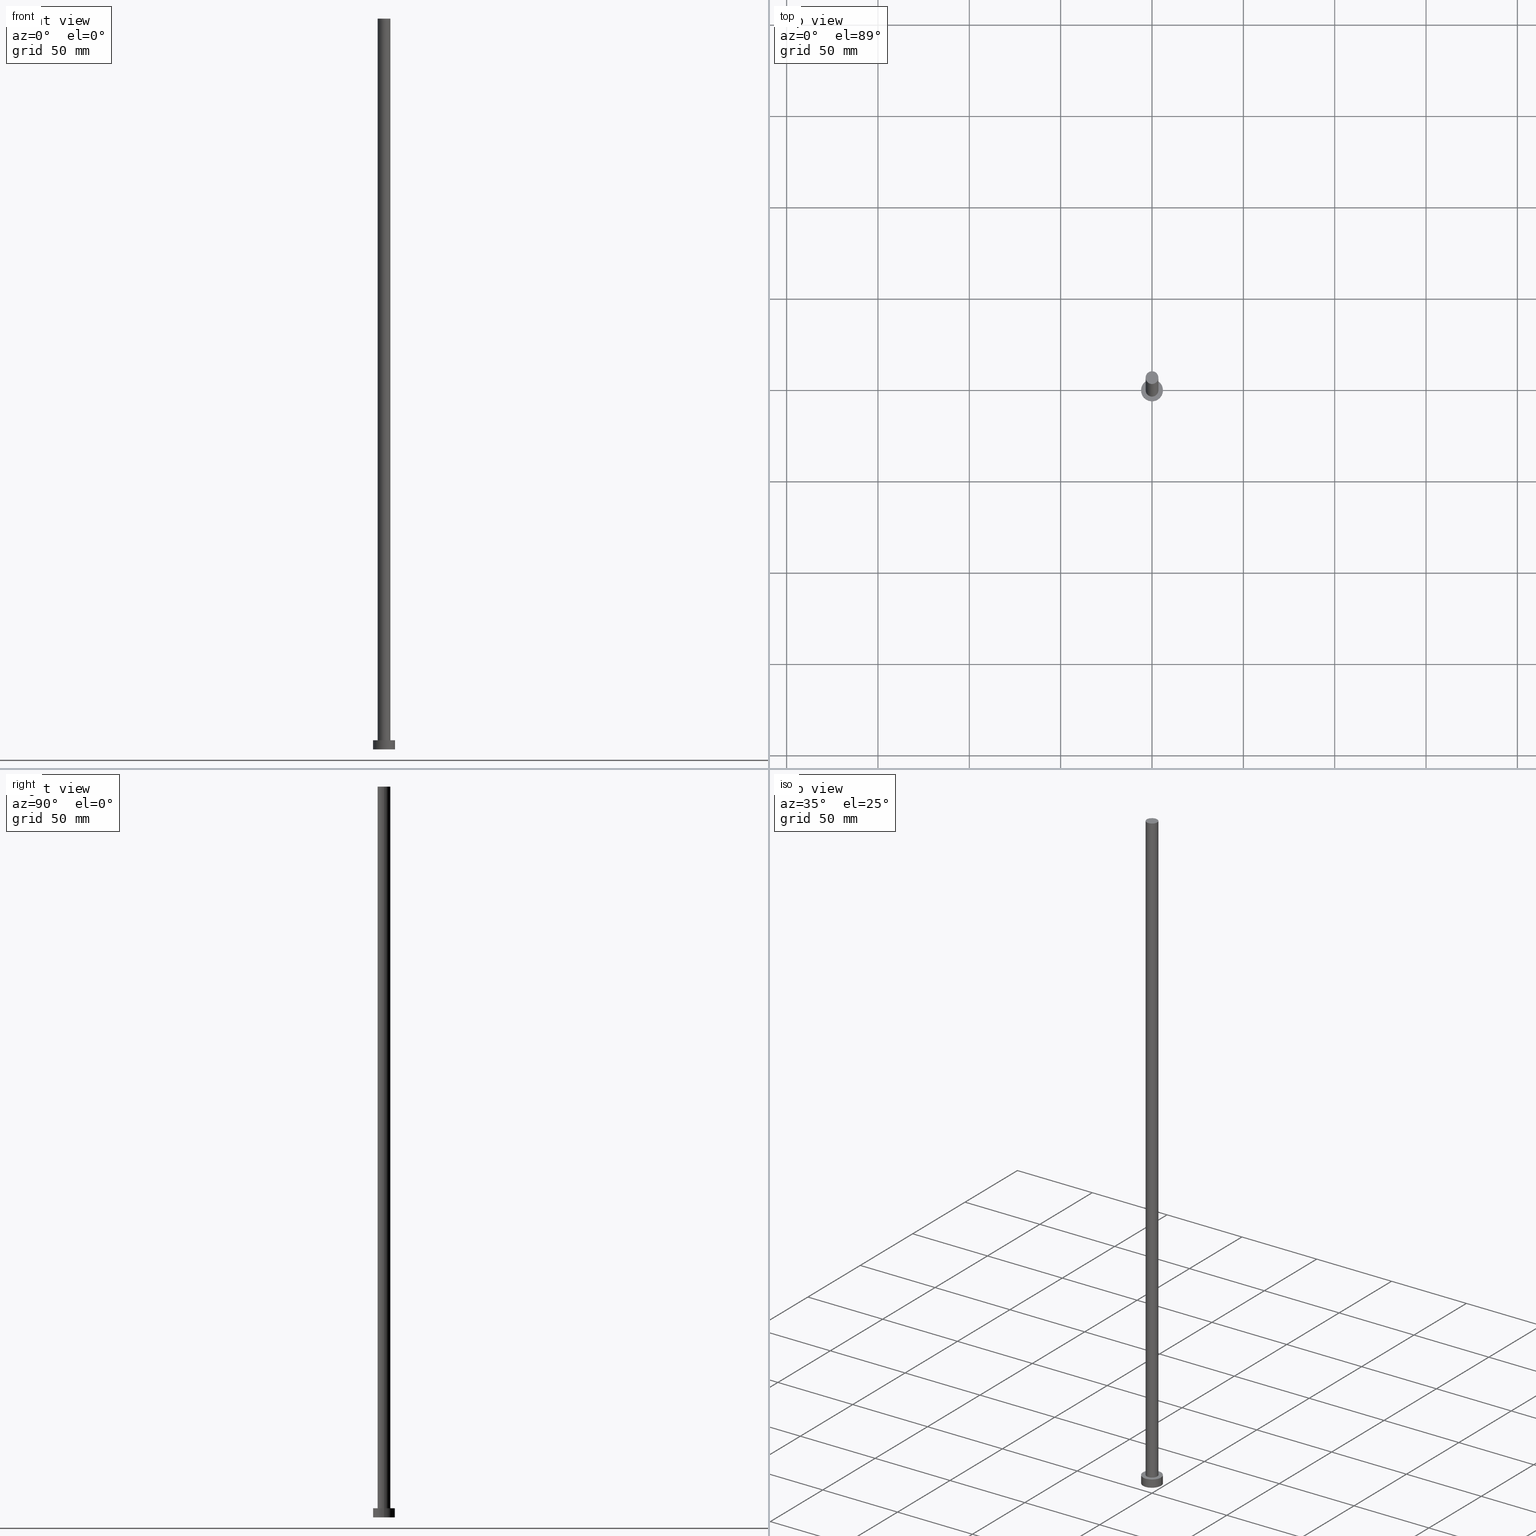
[diagram: canonical four-view strip — front | top / right | iso, engineering-drawing reading convention]
A machine part, canonical four-view strip (front | top / right | iso — engineering-drawing reading convention). The complete STEP part file that produces these views, byte-faithful:
ISO-10303-21;
HEADER;
FILE_DESCRIPTION (( 'STEP AP203' ),
    '1' );
FILE_NAME ('2bd3.STEP',
    '2023-02-13T11:45:54',
    ( '' ),
    ( '' ),
    'SwSTEP 2.0',
    'SolidWorks 2019',
    '' );
FILE_SCHEMA (( 'CONFIG_CONTROL_DESIGN' ));
ENDSEC;

DATA;
#1 = CARTESIAN_POINT ( 'NONE',  ( 0.000000000000000000, 0.000000000000000000, 5.000000000000000000 ) ) ;
#2 = AXIS2_PLACEMENT_3D ( 'NONE', #1, #196, #99 ) ;
#3 = FACE_OUTER_BOUND ( 'NONE', #211, .T. ) ;
#4 = CARTESIAN_POINT ( 'NONE',  ( 0.000000000000000000, 0.000000000000000000, 0.000000000000000000 ) ) ;
#5 = DIRECTION ( 'NONE',  ( -1.000000000000000000, 0.000000000000000000, 0.000000000000000000 ) ) ;
#6 = FACE_OUTER_BOUND ( 'NONE', #249, .T. ) ;
#7 = FACE_OUTER_BOUND ( 'NONE', #215, .T. ) ;
#8 = DIRECTION ( 'NONE',  ( 1.000000000000000000, 0.000000000000000000, 0.000000000000000000 ) ) ;
#9 = AXIS2_PLACEMENT_3D ( 'NONE', #140, #64, #219 ) ;
#10 = EDGE_CURVE ( 'NONE', #234, #173, #197, .T. ) ;
#11 = LOCAL_TIME ( 12, 45, 54.00000000000000000, #53 ) ;
#12 = APPROVAL_ROLE ( '' ) ;
#13 = EDGE_LOOP ( 'NONE', ( #133, #183 ) ) ;
#14 = PRODUCT_DEFINITION_SHAPE ( 'NONE', 'NONE',  #43 ) ;
#15 = ORIENTED_EDGE ( 'NONE', *, *, #37, .F. ) ;
#16 = CALENDAR_DATE ( 2023, 13, 2 ) ;
#17 = CC_DESIGN_PERSON_AND_ORGANIZATION_ASSIGNMENT ( #189, #95, ( #119 ) ) ;
#18 =( NAMED_UNIT ( * ) SI_UNIT ( $, .STERADIAN. ) SOLID_ANGLE_UNIT ( ) );
#19 = AXIS2_PLACEMENT_3D ( 'NONE', #42, #135, #84 ) ;
#20 = CARTESIAN_POINT ( 'NONE',  ( -6.000000000000000888, 0.000000000000000000, 0.000000000000000000 ) ) ;
#21 = APPLICATION_PROTOCOL_DEFINITION ( 'international standard', 'config_control_design', 1994, #147 ) ;
#22 = ORIENTED_EDGE ( 'NONE', *, *, #10, .T. ) ;
#23 = ORIENTED_EDGE ( 'NONE', *, *, #248, .T. ) ;
#24 = PLANE ( 'NONE',  #68 ) ;
#25 = EDGE_CURVE ( 'NONE', #39, #44, #101, .T. ) ;
#26 = FACE_OUTER_BOUND ( 'NONE', #255, .T. ) ;
#27 = CARTESIAN_POINT ( 'NONE',  ( -6.000000000000000888, 0.000000000000000000, 5.000000000000000000 ) ) ;
#28 = AXIS2_PLACEMENT_3D ( 'NONE', #38, #70, #225 ) ;
#29 = DIRECTION ( 'NONE',  ( -1.000000000000000000, 0.000000000000000000, 0.000000000000000000 ) ) ;
#30 = CARTESIAN_POINT ( 'NONE',  ( 0.000000000000000000, 0.000000000000000000, 5.000000000000000000 ) ) ;
#31 = ADVANCED_FACE ( 'NONE', ( #3 ), #214, .T. ) ;
#32 = CIRCLE ( 'NONE', #117, 6.000000000000000888 ) ;
#33 = DATE_TIME_ROLE ( 'creation_date' ) ;
#34 = EDGE_CURVE ( 'NONE', #44, #39, #32, .T. ) ;
#35 = VERTEX_POINT ( 'NONE', #131 ) ;
#36 = AXIS2_PLACEMENT_3D ( 'NONE', #85, #238, #87 ) ;
#37 = EDGE_CURVE ( 'NONE', #190, #134, #55, .T. ) ;
#38 = CARTESIAN_POINT ( 'NONE',  ( 0.000000000000000000, 0.000000000000000000, 0.000000000000000000 ) ) ;
#39 = VERTEX_POINT ( 'NONE', #192 ) ;
#40 = AXIS2_PLACEMENT_3D ( 'NONE', #161, #176, #141 ) ;
#41 = CARTESIAN_POINT ( 'NONE',  ( 0.000000000000000000, 0.000000000000000000, 400.0000000000000000 ) ) ;
#42 = CARTESIAN_POINT ( 'NONE',  ( 0.000000000000000000, 0.000000000000000000, 400.0000000000000000 ) ) ;
#43 = PRODUCT_DEFINITION ( 'NEZN�M�', '', #119, #57 ) ;
#44 = VERTEX_POINT ( 'NONE', #20 ) ;
#45 = DIRECTION ( 'NONE',  ( 1.000000000000000000, 0.000000000000000000, -0.000000000000000000 ) ) ;
#46 = AXIS2_PLACEMENT_3D ( 'NONE', #51, #181, #29 ) ;
#47 = FACE_OUTER_BOUND ( 'NONE', #92, .T. ) ;
#48 = CARTESIAN_POINT ( 'NONE',  ( -3.500000000000000000, 0.000000000000000000, 400.0000000000000000 ) ) ;
#49 = DIRECTION ( 'NONE',  ( -0.000000000000000000, -0.000000000000000000, -1.000000000000000000 ) ) ;
#50 = PERSON ( 'NEUR�EN�', 'NEUR�EN�', 'NEUR�EN�', ('NEUR�EN�'), ('NEUR�EN�'), ('NEUR�EN�') ) ;
#51 = CARTESIAN_POINT ( 'NONE',  ( 0.000000000000000000, 0.000000000000000000, 5.000000000000000000 ) ) ;
#52 = APPROVAL ( #75, 'NEUR�EN�' ) ;
#53 = COORDINATED_UNIVERSAL_TIME_OFFSET ( 1, 0, .AHEAD. ) ;
#54 = AXIS2_PLACEMENT_3D ( 'NONE', #122, #239, #137 ) ;
#55 = CIRCLE ( 'NONE', #2, 6.000000000000000888 ) ;
#56 = SHAPE_DEFINITION_REPRESENTATION ( #14, #105 ) ;
#57 = DESIGN_CONTEXT ( 'detailed design', #147, 'design' ) ;
#58 = DIRECTION ( 'NONE',  ( 1.000000000000000000, 0.000000000000000000, 0.000000000000000000 ) ) ;
#59 = CARTESIAN_POINT ( 'NONE',  ( 0.000000000000000000, 0.000000000000000000, 0.000000000000000000 ) ) ;
#60 = ORGANIZATION ( 'NEUR�EN�', 'NEUR�EN�', '' ) ;
#61 = ORIENTED_EDGE ( 'NONE', *, *, #216, .T. ) ;
#62 = LOCAL_TIME ( 12, 45, 54.00000000000000000, #77 ) ;
#63 = LINE ( 'NONE', #217, #242 ) ;
#64 = DIRECTION ( 'NONE',  ( -0.000000000000000000, -0.000000000000000000, -1.000000000000000000 ) ) ;
#65 = DIRECTION ( 'NONE',  ( -0.000000000000000000, -0.000000000000000000, -1.000000000000000000 ) ) ;
#66 = EDGE_CURVE ( 'NONE', #173, #234, #227, .T. ) ;
#67 = CYLINDRICAL_SURFACE ( 'NONE', #9, 3.500000000000000000 ) ;
#68 = AXIS2_PLACEMENT_3D ( 'NONE', #4, #144, #45 ) ;
#69 = DIRECTION ( 'NONE',  ( -0.000000000000000000, -0.000000000000000000, -1.000000000000000000 ) ) ;
#70 = DIRECTION ( 'NONE',  ( 0.000000000000000000, 0.000000000000000000, 1.000000000000000000 ) ) ;
#71 = DATE_TIME_ROLE ( 'classification_date' ) ;
#72 = CIRCLE ( 'NONE', #209, 6.000000000000000888 ) ;
#73 = LOCAL_TIME ( 12, 45, 54.00000000000000000, #170 ) ;
#74 = EDGE_CURVE ( 'NONE', #190, #39, #106, .T. ) ;
#75 = APPROVAL_STATUS ( 'not_yet_approved' ) ;
#76 = DIRECTION ( 'NONE',  ( 1.000000000000000000, 0.000000000000000000, 0.000000000000000000 ) ) ;
#77 = COORDINATED_UNIVERSAL_TIME_OFFSET ( 1, 0, .AHEAD. ) ;
#78 = ORIENTED_EDGE ( 'NONE', *, *, #180, .T. ) ;
#79 = ADVANCED_FACE ( 'NONE', ( #86, #6 ), #89, .T. ) ;
#80 =( NAMED_UNIT ( * ) PLANE_ANGLE_UNIT ( ) SI_UNIT ( $, .RADIAN. ) );
#81 = ORIENTED_EDGE ( 'NONE', *, *, #252, .T. ) ;
#82 = DIRECTION ( 'NONE',  ( 0.000000000000000000, 0.000000000000000000, 1.000000000000000000 ) ) ;
#83 = SECURITY_CLASSIFICATION ( '', '', #146 ) ;
#84 = DIRECTION ( 'NONE',  ( 1.000000000000000000, 0.000000000000000000, -0.000000000000000000 ) ) ;
#85 = CARTESIAN_POINT ( 'NONE',  ( 0.000000000000000000, 0.000000000000000000, 5.000000000000000000 ) ) ;
#86 = FACE_BOUND ( 'NONE', #13, .T. ) ;
#87 = DIRECTION ( 'NONE',  ( 1.000000000000000000, 0.000000000000000000, 0.000000000000000000 ) ) ;
#88 = DIRECTION ( 'NONE',  ( 0.000000000000000000, 0.000000000000000000, 1.000000000000000000 ) ) ;
#89 = PLANE ( 'NONE',  #40 ) ;
#90 = CLOSED_SHELL ( 'NONE', ( #104, #136, #150, #79, #226, #231, #31 ) ) ;
#91 = PERSON_AND_ORGANIZATION_ROLE ( 'creator' ) ;
#92 = EDGE_LOOP ( 'NONE', ( #115, #109, #165, #169 ) ) ;
#93 = DATE_AND_TIME ( #254, #228 ) ;
#94 = CC_DESIGN_PERSON_AND_ORGANIZATION_ASSIGNMENT ( #223, #246, ( #83 ) ) ;
#95 = PERSON_AND_ORGANIZATION_ROLE ( 'design_supplier' ) ;
#96 = VECTOR ( 'NONE', #49, 1000.000000000000000 ) ;
#97 = DIRECTION ( 'NONE',  ( 1.000000000000000000, 0.000000000000000000, 0.000000000000000000 ) ) ;
#98 = APPROVAL_STATUS ( 'not_yet_approved' ) ;
#99 = DIRECTION ( 'NONE',  ( 1.000000000000000000, 0.000000000000000000, 0.000000000000000000 ) ) ;
#100 = EDGE_LOOP ( 'NONE', ( #15, #167, #236, #151 ) ) ;
#101 = CIRCLE ( 'NONE', #193, 6.000000000000000888 ) ;
#102 = ORIENTED_EDGE ( 'NONE', *, *, #244, .T. ) ;
#103 = CARTESIAN_POINT ( 'NONE',  ( 6.000000000000000888, 7.347880794884120722E-16, 5.000000000000000000 ) ) ;
#104 = ADVANCED_FACE ( 'NONE', ( #202 ), #67, .T. ) ;
#105 = ADVANCED_BREP_SHAPE_REPRESENTATION ( '2bd3', ( #222, #28 ), #247 ) ;
#106 = LINE ( 'NONE', #103, #168 ) ;
#107 = PERSON_AND_ORGANIZATION ( #50, #60 ) ;
#108 = CALENDAR_DATE ( 2023, 13, 2 ) ;
#109 = ORIENTED_EDGE ( 'NONE', *, *, #252, .F. ) ;
#110 = ORIENTED_EDGE ( 'NONE', *, *, #37, .T. ) ;
#111 = DATE_AND_TIME ( #126, #62 ) ;
#112 = DIRECTION ( 'NONE',  ( 0.000000000000000000, 0.000000000000000000, 1.000000000000000000 ) ) ;
#113 = LOCAL_TIME ( 12, 45, 54.00000000000000000, #210 ) ;
#114 = CARTESIAN_POINT ( 'NONE',  ( 0.000000000000000000, 0.000000000000000000, 400.0000000000000000 ) ) ;
#115 = ORIENTED_EDGE ( 'NONE', *, *, #74, .F. ) ;
#116 = AXIS2_PLACEMENT_3D ( 'NONE', #41, #82, #235 ) ;
#117 = AXIS2_PLACEMENT_3D ( 'NONE', #59, #230, #58 ) ;
#118 = CYLINDRICAL_SURFACE ( 'NONE', #54, 3.500000000000000000 ) ;
#119 = PRODUCT_DEFINITION_FORMATION_WITH_SPECIFIED_SOURCE ( 'LIBOVOLN�', '', #163, .NOT_KNOWN. ) ;
#120 = DIRECTION ( 'NONE',  ( -0.000000000000000000, -0.000000000000000000, -1.000000000000000000 ) ) ;
#121 = DIRECTION ( 'NONE',  ( 1.000000000000000000, 0.000000000000000000, 0.000000000000000000 ) ) ;
#122 = CARTESIAN_POINT ( 'NONE',  ( 0.000000000000000000, 0.000000000000000000, 400.0000000000000000 ) ) ;
#123 = AXIS2_PLACEMENT_3D ( 'NONE', #114, #112, #76 ) ;
#124 = LINE ( 'NONE', #178, #158 ) ;
#125 = APPLICATION_PROTOCOL_DEFINITION ( 'international standard', 'config_control_design', 1994, #132 ) ;
#126 = CALENDAR_DATE ( 2023, 13, 2 ) ;
#127 = ORIENTED_EDGE ( 'NONE', *, *, #216, .F. ) ;
#128 = APPROVAL_ROLE ( '' ) ;
#129 = CC_DESIGN_PERSON_AND_ORGANIZATION_ASSIGNMENT ( #245, #250, ( #119 ) ) ;
#130 = APPROVAL_STATUS ( 'not_yet_approved' ) ;
#131 = CARTESIAN_POINT ( 'NONE',  ( -3.500000000000000000, 0.000000000000000000, 5.000000000000000000 ) ) ;
#132 = APPLICATION_CONTEXT ( 'configuration controlled 3d designs of mechanical parts and assemblies' ) ;
#133 = ORIENTED_EDGE ( 'NONE', *, *, #180, .F. ) ;
#134 = VERTEX_POINT ( 'NONE', #175 ) ;
#135 = DIRECTION ( 'NONE',  ( 0.000000000000000000, 0.000000000000000000, 1.000000000000000000 ) ) ;
#136 = ADVANCED_FACE ( 'NONE', ( #162 ), #157, .T. ) ;
#137 = DIRECTION ( 'NONE',  ( -1.000000000000000000, 0.000000000000000000, 0.000000000000000000 ) ) ;
#138 = CC_DESIGN_DATE_AND_TIME_ASSIGNMENT ( #184, #71, ( #83 ) ) ;
#139 = DIRECTION ( 'NONE',  ( 0.000000000000000000, 0.000000000000000000, 1.000000000000000000 ) ) ;
#140 = CARTESIAN_POINT ( 'NONE',  ( 0.000000000000000000, 0.000000000000000000, 400.0000000000000000 ) ) ;
#141 = DIRECTION ( 'NONE',  ( 1.000000000000000000, 0.000000000000000000, -0.000000000000000000 ) ) ;
#142 = CIRCLE ( 'NONE', #177, 3.500000000000000000 ) ;
#143 = APPROVAL_PERSON_ORGANIZATION ( #148, #52, #128 ) ;
#144 = DIRECTION ( 'NONE',  ( 0.000000000000000000, 0.000000000000000000, 1.000000000000000000 ) ) ;
#145 = APPROVAL ( #130, 'NEUR�EN�' ) ;
#146 = SECURITY_CLASSIFICATION_LEVEL ( 'unclassified' ) ;
#147 = APPLICATION_CONTEXT ( 'configuration controlled 3d designs of mechanical parts and assemblies' ) ;
#148 = PERSON_AND_ORGANIZATION ( #50, #60 ) ;
#149 = ORIENTED_EDGE ( 'NONE', *, *, #25, .F. ) ;
#150 = ADVANCED_FACE ( 'NONE', ( #47 ), #243, .T. ) ;
#151 = ORIENTED_EDGE ( 'NONE', *, *, #174, .F. ) ;
#152 = DATE_AND_TIME ( #16, #113 ) ;
#153 = CC_DESIGN_APPROVAL ( #52, ( #83 ) ) ;
#154 = CARTESIAN_POINT ( 'NONE',  ( 0.000000000000000000, 0.000000000000000000, 0.000000000000000000 ) ) ;
#155 = PERSON_AND_ORGANIZATION ( #50, #60 ) ;
#156 = DIRECTION ( 'NONE',  ( 0.000000000000000000, 0.000000000000000000, 1.000000000000000000 ) ) ;
#157 = CYLINDRICAL_SURFACE ( 'NONE', #46, 6.000000000000000888 ) ;
#158 = VECTOR ( 'NONE', #69, 1000.000000000000000 ) ;
#159 = CC_DESIGN_SECURITY_CLASSIFICATION ( #83, ( #119 ) ) ;
#160 = DIRECTION ( 'NONE',  ( -0.000000000000000000, -0.000000000000000000, -1.000000000000000000 ) ) ;
#161 = CARTESIAN_POINT ( 'NONE',  ( 0.000000000000000000, 0.000000000000000000, 5.000000000000000000 ) ) ;
#162 = FACE_OUTER_BOUND ( 'NONE', #100, .T. ) ;
#163 = PRODUCT ( '2bd3', '2bd3', '', ( #213 ) ) ;
#164 = APPROVAL_DATE_TIME ( #93, #185 ) ;
#165 = ORIENTED_EDGE ( 'NONE', *, *, #174, .T. ) ;
#166 = PERSON_AND_ORGANIZATION ( #50, #60 ) ;
#167 = ORIENTED_EDGE ( 'NONE', *, *, #74, .T. ) ;
#168 = VECTOR ( 'NONE', #65, 1000.000000000000000 ) ;
#169 = ORIENTED_EDGE ( 'NONE', *, *, #34, .T. ) ;
#170 = COORDINATED_UNIVERSAL_TIME_OFFSET ( 1, 0, .AHEAD. ) ;
#171 = ORIENTED_EDGE ( 'NONE', *, *, #34, .F. ) ;
#172 = CC_DESIGN_APPROVAL ( #145, ( #119 ) ) ;
#173 = VERTEX_POINT ( 'NONE', #204 ) ;
#174 = EDGE_CURVE ( 'NONE', #134, #44, #220, .T. ) ;
#175 = CARTESIAN_POINT ( 'NONE',  ( -6.000000000000000888, 0.000000000000000000, 5.000000000000000000 ) ) ;
#176 = DIRECTION ( 'NONE',  ( 0.000000000000000000, 0.000000000000000000, 1.000000000000000000 ) ) ;
#177 = AXIS2_PLACEMENT_3D ( 'NONE', #198, #88, #8 ) ;
#178 = CARTESIAN_POINT ( 'NONE',  ( -3.500000000000000000, 0.000000000000000000, 400.0000000000000000 ) ) ;
#179 =( LENGTH_UNIT ( ) NAMED_UNIT ( * ) SI_UNIT ( .MILLI., .METRE. ) );
#180 = EDGE_CURVE ( 'NONE', #35, #212, #142, .T. ) ;
#181 = DIRECTION ( 'NONE',  ( -0.000000000000000000, -0.000000000000000000, -1.000000000000000000 ) ) ;
#182 = PERSON_AND_ORGANIZATION ( #50, #60 ) ;
#183 = ORIENTED_EDGE ( 'NONE', *, *, #244, .F. ) ;
#184 = DATE_AND_TIME ( #108, #11 ) ;
#185 = APPROVAL ( #98, 'NEUR�EN�' ) ;
#186 = ORIENTED_EDGE ( 'NONE', *, *, #10, .F. ) ;
#187 = ORIENTED_EDGE ( 'NONE', *, *, #66, .T. ) ;
#188 = APPROVAL_PERSON_ORGANIZATION ( #166, #145, #221 ) ;
#189 = PERSON_AND_ORGANIZATION ( #50, #60 ) ;
#190 = VERTEX_POINT ( 'NONE', #200 ) ;
#191 = COORDINATED_UNIVERSAL_TIME_OFFSET ( 1, 0, .AHEAD. ) ;
#192 = CARTESIAN_POINT ( 'NONE',  ( 6.000000000000000888, 7.347880794884120722E-16, 0.000000000000000000 ) ) ;
#193 = AXIS2_PLACEMENT_3D ( 'NONE', #154, #156, #97 ) ;
#194 = DATE_AND_TIME ( #232, #73 ) ;
#195 = UNCERTAINTY_MEASURE_WITH_UNIT (LENGTH_MEASURE( 1.000000000000000082E-05 ), #179, 'distance_accuracy_value', 'NONE');
#196 = DIRECTION ( 'NONE',  ( 0.000000000000000000, 0.000000000000000000, 1.000000000000000000 ) ) ;
#197 = CIRCLE ( 'NONE', #123, 3.500000000000000000 ) ;
#198 = CARTESIAN_POINT ( 'NONE',  ( 0.000000000000000000, 0.000000000000000000, 5.000000000000000000 ) ) ;
#199 = CARTESIAN_POINT ( 'NONE',  ( 0.000000000000000000, 0.000000000000000000, 5.000000000000000000 ) ) ;
#200 = CARTESIAN_POINT ( 'NONE',  ( 6.000000000000000888, 7.347880794884120722E-16, 5.000000000000000000 ) ) ;
#201 = APPROVAL_PERSON_ORGANIZATION ( #182, #185, #12 ) ;
#202 = FACE_OUTER_BOUND ( 'NONE', #233, .T. ) ;
#203 = CC_DESIGN_DATE_AND_TIME_ASSIGNMENT ( #194, #33, ( #43 ) ) ;
#204 = CARTESIAN_POINT ( 'NONE',  ( 3.500000000000000000, 4.286263797015735609E-16, 400.0000000000000000 ) ) ;
#205 = APPROVAL_DATE_TIME ( #111, #145 ) ;
#206 = AXIS2_PLACEMENT_3D ( 'NONE', #30, #160, #5 ) ;
#207 = PERSON_AND_ORGANIZATION_ROLE ( 'design_owner' ) ;
#208 = ORIENTED_EDGE ( 'NONE', *, *, #248, .F. ) ;
#209 = AXIS2_PLACEMENT_3D ( 'NONE', #199, #139, #121 ) ;
#210 = COORDINATED_UNIVERSAL_TIME_OFFSET ( 1, 0, .AHEAD. ) ;
#211 = EDGE_LOOP ( 'NONE', ( #22, #187 ) ) ;
#212 = VERTEX_POINT ( 'NONE', #241 ) ;
#213 = MECHANICAL_CONTEXT ( 'NONE', #132, 'mechanical' ) ;
#214 = PLANE ( 'NONE',  #19 ) ;
#215 = EDGE_LOOP ( 'NONE', ( #208, #186, #61, #78 ) ) ;
#216 = EDGE_CURVE ( 'NONE', #234, #35, #124, .T. ) ;
#217 = CARTESIAN_POINT ( 'NONE',  ( 3.500000000000000000, 4.286263797015735609E-16, 400.0000000000000000 ) ) ;
#218 = PRODUCT_RELATED_PRODUCT_CATEGORY ( 'detail', '', ( #163 ) ) ;
#219 = DIRECTION ( 'NONE',  ( -1.000000000000000000, 0.000000000000000000, 0.000000000000000000 ) ) ;
#220 = LINE ( 'NONE', #27, #96 ) ;
#221 = APPROVAL_ROLE ( '' ) ;
#222 = MANIFOLD_SOLID_BREP ( 'P�idat vysunut�m3', #90 ) ;
#223 = PERSON_AND_ORGANIZATION ( #50, #60 ) ;
#224 = CIRCLE ( 'NONE', #36, 3.500000000000000000 ) ;
#225 = DIRECTION ( 'NONE',  ( 1.000000000000000000, 0.000000000000000000, 0.000000000000000000 ) ) ;
#226 = ADVANCED_FACE ( 'NONE', ( #26 ), #24, .F. ) ;
#227 = CIRCLE ( 'NONE', #116, 3.500000000000000000 ) ;
#228 = LOCAL_TIME ( 12, 45, 54.00000000000000000, #191 ) ;
#229 = APPROVAL_DATE_TIME ( #152, #52 ) ;
#230 = DIRECTION ( 'NONE',  ( 0.000000000000000000, 0.000000000000000000, 1.000000000000000000 ) ) ;
#231 = ADVANCED_FACE ( 'NONE', ( #7 ), #118, .T. ) ;
#232 = CALENDAR_DATE ( 2023, 13, 2 ) ;
#233 = EDGE_LOOP ( 'NONE', ( #251, #23, #102, #127 ) ) ;
#234 = VERTEX_POINT ( 'NONE', #48 ) ;
#235 = DIRECTION ( 'NONE',  ( 1.000000000000000000, 0.000000000000000000, 0.000000000000000000 ) ) ;
#236 = ORIENTED_EDGE ( 'NONE', *, *, #25, .T. ) ;
#237 = CC_DESIGN_PERSON_AND_ORGANIZATION_ASSIGNMENT ( #155, #91, ( #43 ) ) ;
#238 = DIRECTION ( 'NONE',  ( 0.000000000000000000, 0.000000000000000000, 1.000000000000000000 ) ) ;
#239 = DIRECTION ( 'NONE',  ( -0.000000000000000000, -0.000000000000000000, -1.000000000000000000 ) ) ;
#240 = CC_DESIGN_PERSON_AND_ORGANIZATION_ASSIGNMENT ( #107, #207, ( #163 ) ) ;
#241 = CARTESIAN_POINT ( 'NONE',  ( 3.500000000000000000, 4.286263797015735609E-16, 5.000000000000000000 ) ) ;
#242 = VECTOR ( 'NONE', #120, 1000.000000000000000 ) ;
#243 = CYLINDRICAL_SURFACE ( 'NONE', #206, 6.000000000000000888 ) ;
#244 = EDGE_CURVE ( 'NONE', #212, #35, #224, .T. ) ;
#245 = PERSON_AND_ORGANIZATION ( #50, #60 ) ;
#246 = PERSON_AND_ORGANIZATION_ROLE ( 'classification_officer' ) ;
#247 =( GEOMETRIC_REPRESENTATION_CONTEXT ( 3 ) GLOBAL_UNCERTAINTY_ASSIGNED_CONTEXT ( ( #195 ) ) GLOBAL_UNIT_ASSIGNED_CONTEXT ( ( #179, #80, #18 ) ) REPRESENTATION_CONTEXT ( 'NONE', 'WORKASPACE' ) );
#248 = EDGE_CURVE ( 'NONE', #173, #212, #63, .T. ) ;
#249 = EDGE_LOOP ( 'NONE', ( #81, #110 ) ) ;
#250 = PERSON_AND_ORGANIZATION_ROLE ( 'creator' ) ;
#251 = ORIENTED_EDGE ( 'NONE', *, *, #66, .F. ) ;
#252 = EDGE_CURVE ( 'NONE', #134, #190, #72, .T. ) ;
#253 = CC_DESIGN_APPROVAL ( #185, ( #43 ) ) ;
#254 = CALENDAR_DATE ( 2023, 13, 2 ) ;
#255 = EDGE_LOOP ( 'NONE', ( #171, #149 ) ) ;
ENDSEC;
END-ISO-10303-21;
